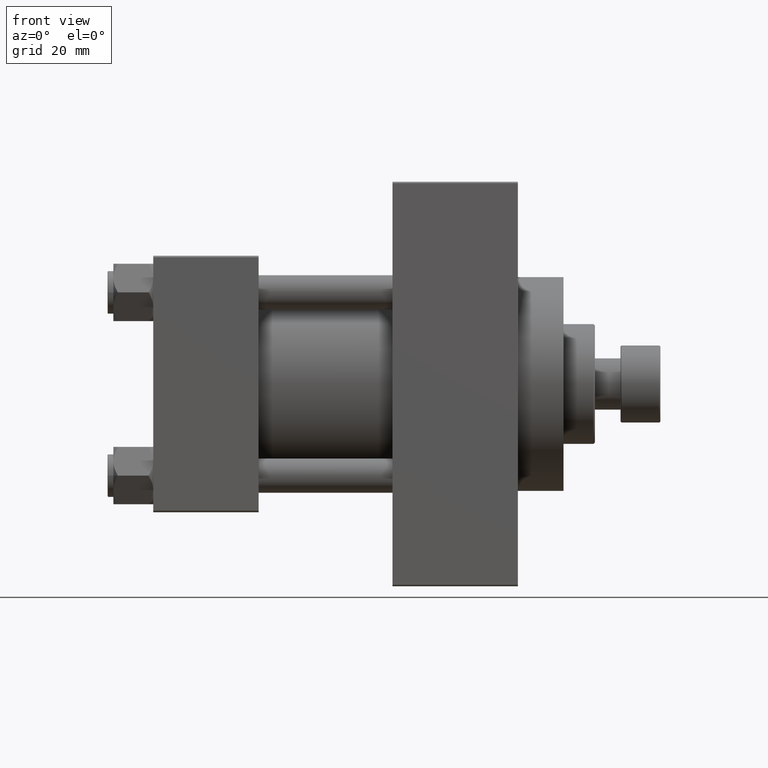
[diagram: clean part render]
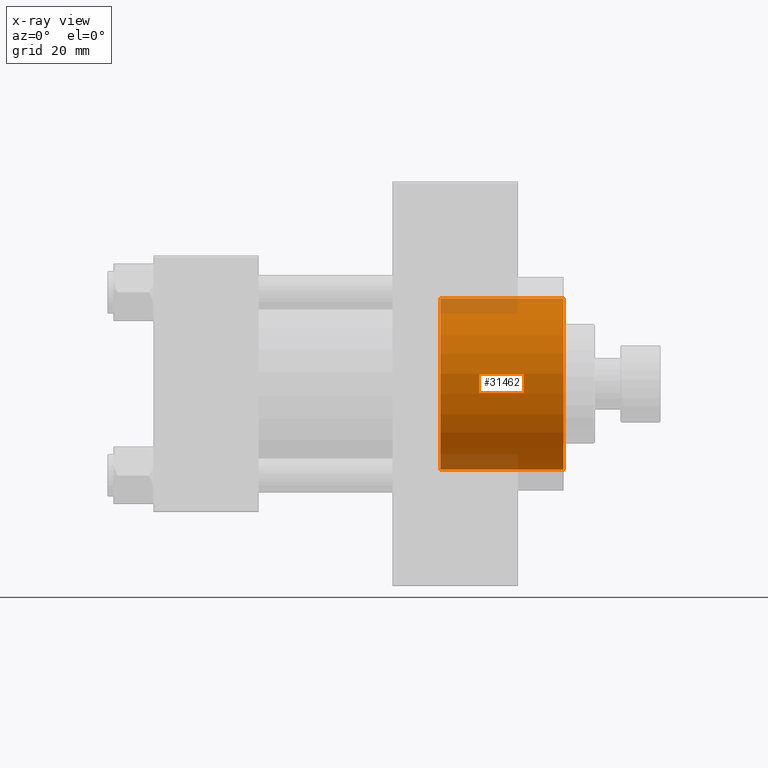
[diagram: x-ray — body ghosted, one internal face saturated and labeled with its STEP entity id]
A machine part, front view, then the same camera in x-ray: the body is ghosted and one INTERNAL B-rep face — a face not visible from any outside direction — is saturated and labeled: STEP entity #31462.
In plain terms, the highlighted cylindrical surface (partial cylindrical patch) has radius 30 mm, axis along (1, 0, 0).
Its self-contained STEP definition (entity closure, byte-faithful):
#3565 = VERTEX_POINT ( 'NONE', #47712 ) ;
#3765 = LINE ( 'NONE', #7142, #46368 ) ;
#4159 = CIRCLE ( 'NONE', #23388, 30.00000000000000000 ) ;
#6431 = CARTESIAN_POINT ( 'NONE',  ( 100.7400000000000233, 0.000000000000000000, 0.000000000000000000 ) ) ;
#7142 = CARTESIAN_POINT ( 'NONE',  ( 100.7400000000000233, 3.673940397442059178E-15, 30.00000000000000000 ) ) ;
#8417 = VECTOR ( 'NONE', #35569, 1000.000000000000000 ) ;
#8832 = CARTESIAN_POINT ( 'NONE',  ( 100.7400000000000233, 0.000000000000000000, 0.000000000000000000 ) ) ;
#10044 = CARTESIAN_POINT ( 'NONE',  ( 100.7400000000000233, 0.000000000000000000, -30.00000000000000000 ) ) ;
#10053 = CYLINDRICAL_SURFACE ( 'NONE', #47098, 30.00000000000000000 ) ;
#10774 = DIRECTION ( 'NONE',  ( 0.000000000000000000, 0.000000000000000000, -1.000000000000000000 ) ) ;
#10835 = EDGE_LOOP ( 'NONE', ( #26264, #37599, #21720, #37833 ) ) ;
#11418 = CARTESIAN_POINT ( 'NONE',  ( 144.0000000000000284, 0.000000000000000000, 0.000000000000000000 ) ) ;
#12882 = VERTEX_POINT ( 'NONE', #27252 ) ;
#12902 = DIRECTION ( 'NONE',  ( 1.000000000000000000, 0.000000000000000000, 0.000000000000000000 ) ) ;
#14867 = CARTESIAN_POINT ( 'NONE',  ( 100.7400000000000233, 3.673940397442059178E-15, 30.00000000000000000 ) ) ;
#14895 = EDGE_CURVE ( 'NONE', #12882, #25324, #43536, .T. ) ;
#15978 = VERTEX_POINT ( 'NONE', #14867 ) ;
#19517 = AXIS2_PLACEMENT_3D ( 'NONE', #11418, #22274, #26805 ) ;
#21720 = ORIENTED_EDGE ( 'NONE', *, *, #34923, .T. ) ;
#21826 = CIRCLE ( 'NONE', #19517, 30.00000000000000000 ) ;
#22274 = DIRECTION ( 'NONE',  ( 1.000000000000000000, 0.000000000000000000, 0.000000000000000000 ) ) ;
#22564 = DIRECTION ( 'NONE',  ( 1.000000000000000000, -0.000000000000000000, -0.000000000000000000 ) ) ;
#23388 = AXIS2_PLACEMENT_3D ( 'NONE', #8832, #12902, #23528 ) ;
#23528 = DIRECTION ( 'NONE',  ( 0.000000000000000000, 0.000000000000000000, -1.000000000000000000 ) ) ;
#25324 = VERTEX_POINT ( 'NONE', #46064 ) ;
#26264 = ORIENTED_EDGE ( 'NONE', *, *, #29422, .F. ) ;
#26805 = DIRECTION ( 'NONE',  ( 0.000000000000000000, 0.000000000000000000, -1.000000000000000000 ) ) ;
#27252 = CARTESIAN_POINT ( 'NONE',  ( 100.7400000000000233, 0.000000000000000000, -30.00000000000000000 ) ) ;
#29422 = EDGE_CURVE ( 'NONE', #15978, #12882, #4159, .T. ) ;
#31462 = ADVANCED_FACE ( 'NONE', ( #40411 ), #10053, .F. ) ;
#33141 = EDGE_CURVE ( 'NONE', #15978, #3565, #3765, .T. ) ;
#34923 = EDGE_CURVE ( 'NONE', #3565, #25324, #21826, .T. ) ;
#35569 = DIRECTION ( 'NONE',  ( 1.000000000000000000, -0.000000000000000000, -0.000000000000000000 ) ) ;
#37599 = ORIENTED_EDGE ( 'NONE', *, *, #33141, .T. ) ;
#37833 = ORIENTED_EDGE ( 'NONE', *, *, #14895, .F. ) ;
#40411 = FACE_OUTER_BOUND ( 'NONE', #10835, .T. ) ;
#43067 = DIRECTION ( 'NONE',  ( 1.000000000000000000, -0.000000000000000000, -0.000000000000000000 ) ) ;
#43536 = LINE ( 'NONE', #10044, #8417 ) ;
#46064 = CARTESIAN_POINT ( 'NONE',  ( 144.0000000000000284, 0.000000000000000000, -30.00000000000000000 ) ) ;
#46368 = VECTOR ( 'NONE', #22564, 1000.000000000000000 ) ;
#47098 = AXIS2_PLACEMENT_3D ( 'NONE', #6431, #43067, #10774 ) ;
#47712 = CARTESIAN_POINT ( 'NONE',  ( 144.0000000000000284, 3.673940397442059178E-15, 30.00000000000000000 ) ) ;